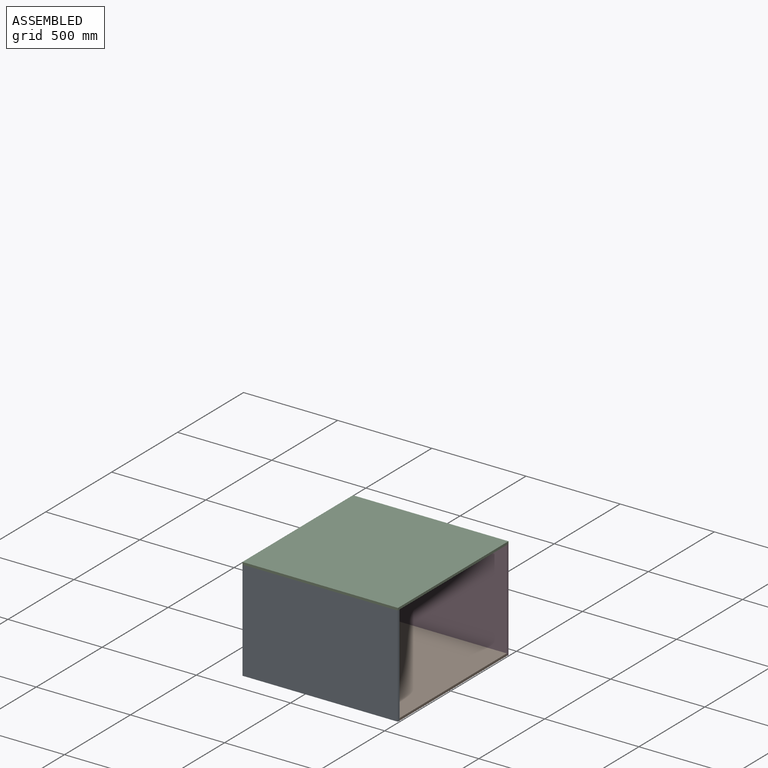
[diagram: assembled view]
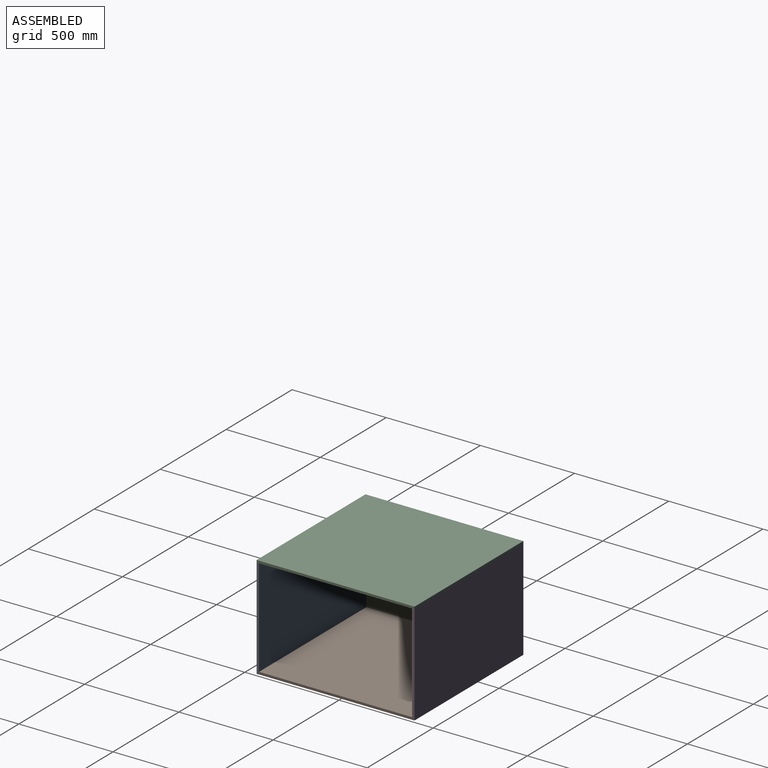
[diagram: assembled view, second angle]
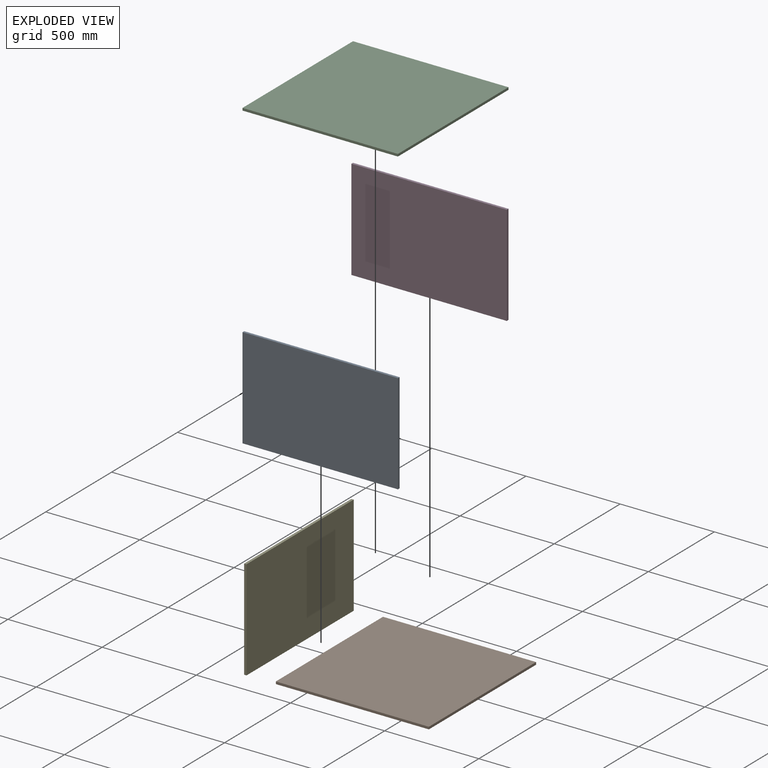
[diagram: exploded view]
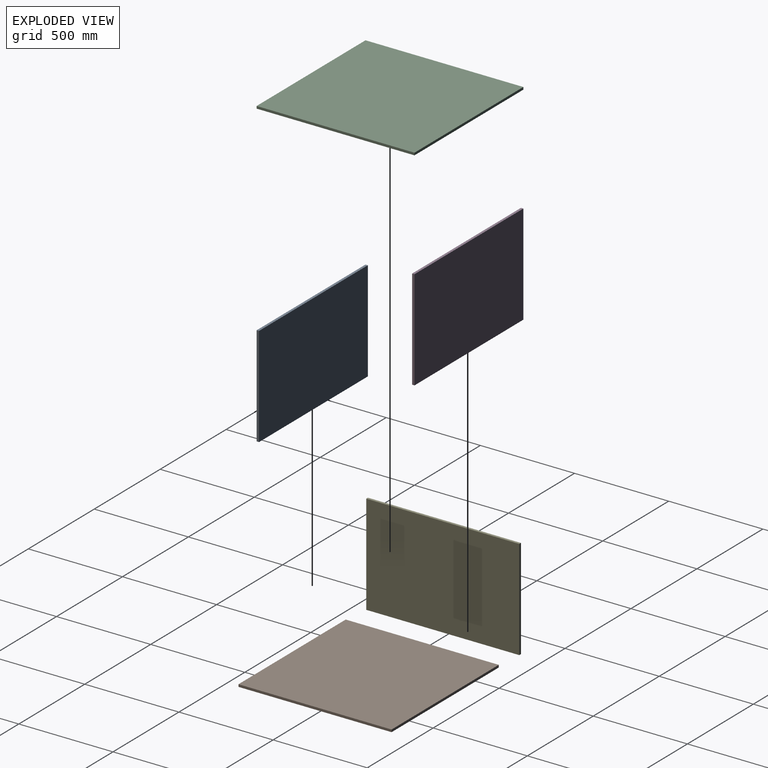
[diagram: exploded view, second angle]
ASSEMBLY  parts=5 mates=11
PART A: 6 faces, bbox 825.5x12.7x533.4 mm
  f0: plane 825.5x12.7mm, normal (0,0,-1), area 10483.8mm2, adj f1,f3,f4,f5
  f1: plane 533.4x12.7mm, normal (1,0,0), area 6774.2mm2, adj f0,f2,f4,f5
  f2: plane 825.5x12.7mm, normal (0,0,1), area 10483.8mm2, adj f1,f3,f4,f5
  f3: plane 533.4x12.7mm, normal (-1,0,0), area 6774.2mm2, adj f0,f2,f4,f5
  f4: plane 825.5x533.4mm, normal (0,-1,0), area 440321.7mm2, adj f0,f1,f2,f3
  f5: plane 825.5x533.4mm, normal (0,1,0), area 440321.7mm2, adj f0,f1,f2,f3
PART B: 6 faces, bbox 812.8x812.8x12.7 mm
  f0: plane 812.8x12.7mm, normal (0,-1,0), area 10322.6mm2, adj f1,f3,f4,f5
  f1: plane 812.8x12.7mm, normal (1,0,0), area 10322.6mm2, adj f0,f2,f4,f5
  f2: plane 812.8x12.7mm, normal (0,1,0), area 10322.6mm2, adj f1,f3,f4,f5
  f3: plane 812.8x12.7mm, normal (-1,0,0), area 10322.6mm2, adj f0,f2,f4,f5
  f4: plane 812.8x812.8mm, normal (0,0,1), area 660643.8mm2, adj f0,f1,f2,f3
  f5: plane 812.8x812.8mm, normal (0,0,-1), area 660643.8mm2, adj f0,f1,f2,f3
PART C: 6 faces, bbox 838.2x825.5x12.7 mm
  f0: plane 838.2x12.7mm, normal (0,-1,0), area 10645.1mm2, adj f1,f3,f4,f5
  f1: plane 825.5x12.7mm, normal (1,0,0), area 10483.8mm2, adj f0,f2,f4,f5
  f2: plane 838.2x12.7mm, normal (0,1,0), area 10645.1mm2, adj f1,f3,f4,f5
  f3: plane 825.5x12.7mm, normal (-1,0,0), area 10483.8mm2, adj f0,f2,f4,f5
  f4: plane 838.2x825.5mm, normal (0,0,1), area 691934.1mm2, adj f0,f1,f2,f3
  f5: plane 838.2x825.5mm, normal (0,0,-1), area 691934.1mm2, adj f0,f1,f2,f3
PART D: same geometry as A
PART E: 6 faces, bbox 812.8x12.7x533.4 mm
  f0: plane 812.8x12.7mm, normal (0,0,-1), area 10322.6mm2, adj f1,f3,f4,f5
  f1: plane 533.4x12.7mm, normal (1,0,0), area 6774.2mm2, adj f0,f2,f4,f5
  f2: plane 812.8x12.7mm, normal (0,0,1), area 10322.6mm2, adj f1,f3,f4,f5
  f3: plane 533.4x12.7mm, normal (-1,0,0), area 6774.2mm2, adj f0,f2,f4,f5
  f4: plane 812.8x533.4mm, normal (0,-1,0), area 433547.5mm2, adj f0,f1,f2,f3
  f5: plane 812.8x533.4mm, normal (0,1,0), area 433547.5mm2, adj f0,f1,f2,f3
PLACE A t=(105.12,588.01,-207.26)mm
PLACE B rot(axis=(0,0,-1),90deg) t=(111.47,994.41,-473.96)mm
PLACE C rot(axis=(0,0,-1),90deg) t=(105.12,994.41,59.44)mm
PLACE D t=(105.12,1413.51,-207.26)mm
PLACE E rot(axis=(0,0,-1),90deg) t=(-294.93,994.41,-207.26)mm
MATE planar C.f5 <-> A.f2  axis (0,0,-1) through (105.12,994.41,59.44)mm
MATE planar B.f5 <-> D.f0  axis (0,0,-1) through (111.47,994.41,-473.96)mm
MATE planar B.f5 <-> A.f0  axis (0,0,-1) through (111.47,994.41,-473.96)mm
MATE planar E.f5 <-> B.f0  axis (1,0,0) through (-294.93,994.41,-207.26)mm
MATE planar C.f1 <-> A.f4  axis (0,-1,0) through (105.12,575.31,65.79)mm
MATE planar B.f1 <-> A.f5  axis (0,-1,0) through (111.47,588.01,-467.61)mm
MATE planar C.f0 <-> E.f4  axis (-1,0,0) through (-307.63,575.31,65.79)mm
MATE planar B.f2 <-> D.f1  axis (1,0,0) through (517.87,994.41,-467.61)mm
MATE planar A.f1 <-> B.f2  axis (1,0,0) through (517.87,581.66,-207.26)mm
MATE planar D.f4 <-> B.f3  axis (0,-1,0) through (105.12,1400.81,-207.26)mm
MATE planar E.f0 <-> B.f5  axis (0,0,-1) through (-301.28,994.41,-473.96)mm
